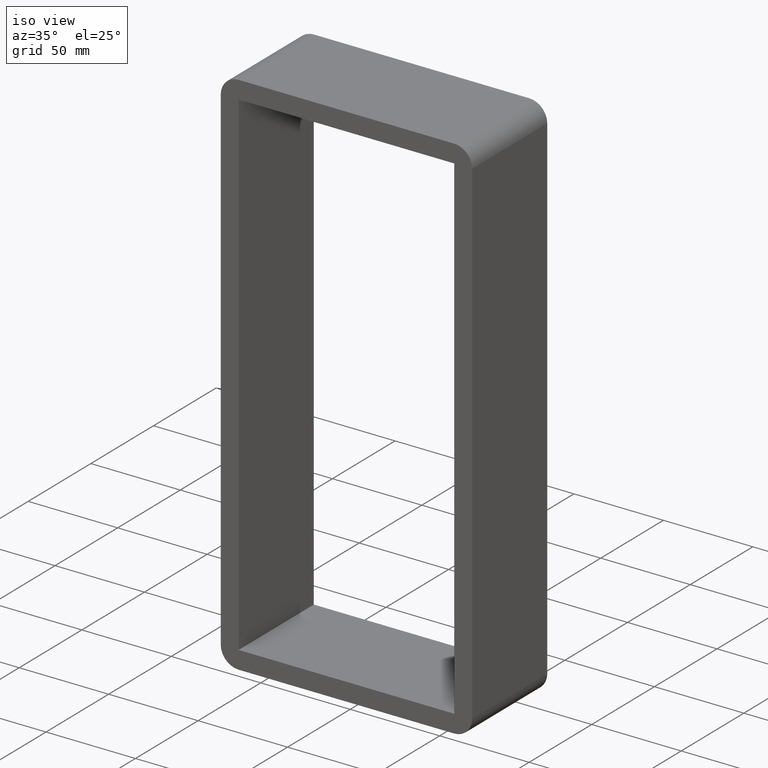
[diagram: clean part render]
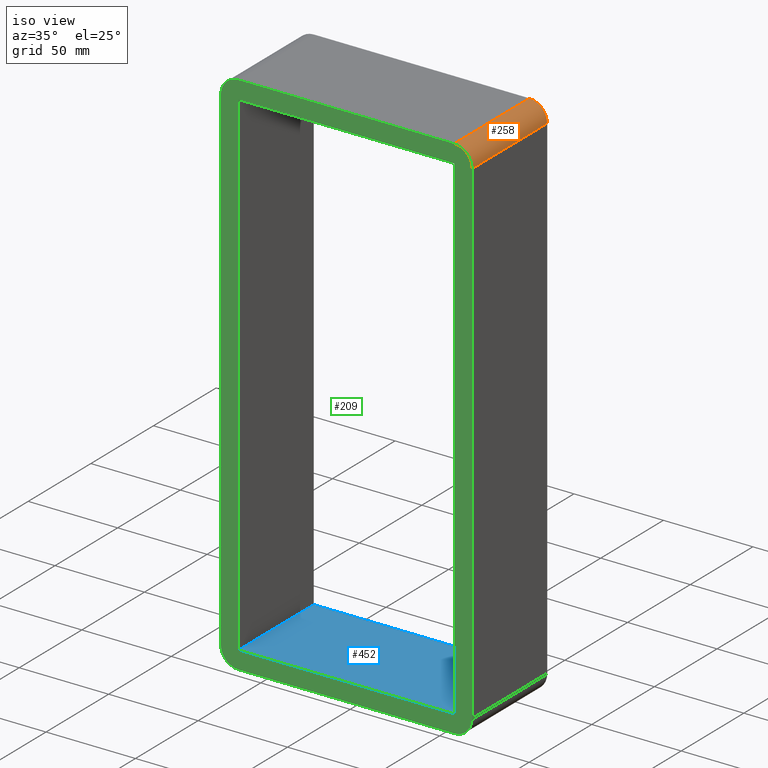
[diagram: same view with three faces highlighted in distinct colors, each labeled with its STEP entity id]
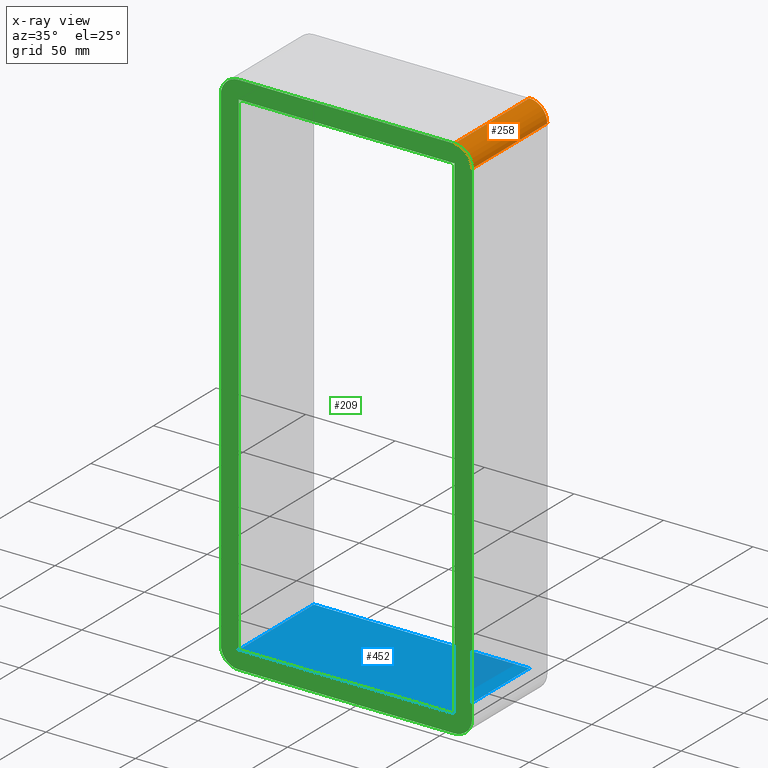
[diagram: x-ray of the same camera — body ghosted, the three highlighted faces saturated]
A machine part, iso view with three faces highlighted in distinct colors.
The next image is the same camera in x-ray (body ghosted, the three faces saturated) — at least one of them is partly hidden behind the body in this view.
Their STEP definitions:

[orange] entity #258 — the highlighted cylindrical surface (edge-blend (fillet) strip) has radius 10 mm, axis along (0, -1, 0).
#116=CARTESIAN_POINT('',(70.25,-3.0,139.0));
#117=VERTEX_POINT('',#116);
#124=CARTESIAN_POINT('',(60.25,-3.0,149.0));
#125=VERTEX_POINT('',#124);
#126=CARTESIAN_POINT('',(60.25,-3.0,139.0));
#127=DIRECTION('',(0.0,1.0,0.0));
#128=DIRECTION('',(0.707106781186547,0.0,0.707106781186547));
#129=AXIS2_PLACEMENT_3D('',#126,#127,#128);
#130=CIRCLE('',#129,9.999999999999998);
#131=EDGE_CURVE('',#125,#117,#130,.T.);
#216=CARTESIAN_POINT('',(70.25,57.0,139.0));
#217=VERTEX_POINT('',#216);
#224=CARTESIAN_POINT('',(70.25,-3.0,139.0));
#225=DIRECTION('',(0.0,1.0,0.0));
#226=VECTOR('',#225,60.0);
#227=LINE('',#224,#226);
#228=EDGE_CURVE('',#117,#217,#227,.T.);
#234=CARTESIAN_POINT('',(60.25,0.0,139.0));
#235=DIRECTION('',(0.0,-1.0,0.0));
#236=DIRECTION('',(0.707106781186547,0.0,0.707106781186547));
#237=AXIS2_PLACEMENT_3D('',#234,#235,#236);
#238=CYLINDRICAL_SURFACE('',#237,10.0);
#239=ORIENTED_EDGE('',*,*,#131,.T.);
#240=ORIENTED_EDGE('',*,*,#228,.T.);
#241=CARTESIAN_POINT('',(60.25,57.0,149.0));
#242=VERTEX_POINT('',#241);
#243=CARTESIAN_POINT('',(60.25,57.0,139.0));
#244=DIRECTION('',(0.0,-1.0,0.0));
#245=DIRECTION('',(0.707106781186547,0.0,0.707106781186547));
#246=AXIS2_PLACEMENT_3D('',#243,#244,#245);
#247=CIRCLE('',#246,9.999999999999998);
#248=EDGE_CURVE('',#217,#242,#247,.T.);
#249=ORIENTED_EDGE('',*,*,#248,.T.);
#250=CARTESIAN_POINT('',(60.25,57.0,149.0));
#251=DIRECTION('',(0.0,-1.0,0.0));
#252=VECTOR('',#251,60.0);
#253=LINE('',#250,#252);
#254=EDGE_CURVE('',#242,#125,#253,.T.);
#255=ORIENTED_EDGE('',*,*,#254,.T.);
#256=EDGE_LOOP('',(#239,#240,#249,#255));
#257=FACE_OUTER_BOUND('',#256,.T.);
#258=ADVANCED_FACE('',(#257),#238,.T.);

[blue] entity #452 — the highlighted planar face has unit normal (0, 0, -1).
#177=CARTESIAN_POINT('',(60.25,-3.0,-139.0));
#178=VERTEX_POINT('',#177);
#185=CARTESIAN_POINT('',(-60.25,-3.0,-139.0));
#186=VERTEX_POINT('',#185);
#187=CARTESIAN_POINT('',(60.25,-3.0,-139.0));
#188=DIRECTION('',(-1.0,0.0,0.0));
#189=VECTOR('',#188,120.50000000000001);
#190=LINE('',#187,#189);
#191=EDGE_CURVE('',#178,#186,#190,.T.);
#362=CARTESIAN_POINT('',(60.25,57.0,-139.0));
#363=VERTEX_POINT('',#362);
#364=CARTESIAN_POINT('',(60.25,57.0,-139.0));
#365=DIRECTION('',(0.0,-1.0,0.0));
#366=VECTOR('',#365,60.0);
#367=LINE('',#364,#366);
#368=EDGE_CURVE('',#363,#178,#367,.T.);
#419=CARTESIAN_POINT('',(-60.25,57.0,-139.0));
#420=VERTEX_POINT('',#419);
#421=CARTESIAN_POINT('',(-60.25,-3.0,-139.0));
#422=DIRECTION('',(0.0,1.0,0.0));
#423=VECTOR('',#422,60.0);
#424=LINE('',#421,#423);
#425=EDGE_CURVE('',#186,#420,#424,.T.);
#436=CARTESIAN_POINT('',(60.25,0.0,-139.0));
#437=DIRECTION('',(0.0,0.0,-1.0));
#438=DIRECTION('',(-1.0,0.0,0.0));
#439=AXIS2_PLACEMENT_3D('',#436,#437,#438);
#440=PLANE('',#439);
#441=ORIENTED_EDGE('',*,*,#425,.F.);
#442=ORIENTED_EDGE('',*,*,#191,.F.);
#443=ORIENTED_EDGE('',*,*,#368,.F.);
#444=CARTESIAN_POINT('',(-60.250000000000014,57.0,-139.0));
#445=DIRECTION('',(1.0,0.0,0.0));
#446=VECTOR('',#445,120.50000000000001);
#447=LINE('',#444,#446);
#448=EDGE_CURVE('',#420,#363,#447,.T.);
#449=ORIENTED_EDGE('',*,*,#448,.F.);
#450=EDGE_LOOP('',(#441,#442,#443,#449));
#451=FACE_OUTER_BOUND('',#450,.T.);
#452=ADVANCED_FACE('',(#451),#440,.F.);

[green] entity #209 — the highlighted planar face has unit normal (0, 1, 0).
#84=CARTESIAN_POINT('',(70.25,-3.0,-139.00000000000003));
#85=VERTEX_POINT('',#84);
#92=CARTESIAN_POINT('',(60.25,-3.0,-149.00000000000003));
#93=VERTEX_POINT('',#92);
#94=CARTESIAN_POINT('',(60.25,-3.0,-139.00000000000003));
#95=DIRECTION('',(0.0,1.0,0.0));
#96=DIRECTION('',(0.707106781186547,0.0,-0.707106781186547));
#97=AXIS2_PLACEMENT_3D('',#94,#95,#96);
#98=CIRCLE('',#97,9.999999999999998);
#99=EDGE_CURVE('',#85,#93,#98,.T.);
#110=CARTESIAN_POINT('',(0.0,-3.0,-1.458355E-014));
#111=DIRECTION('',(0.0,1.0,0.0));
#112=DIRECTION('',(0.0,0.0,1.0));
#113=AXIS2_PLACEMENT_3D('',#110,#111,#112);
#114=PLANE('',#113);
#115=ORIENTED_EDGE('',*,*,#99,.F.);
#116=CARTESIAN_POINT('',(70.25,-3.0,139.0));
#117=VERTEX_POINT('',#116);
#118=CARTESIAN_POINT('',(70.25,-3.0,-139.0));
#119=DIRECTION('',(0.0,0.0,1.0));
#120=VECTOR('',#119,278.0);
#121=LINE('',#118,#120);
#122=EDGE_CURVE('',#85,#117,#121,.T.);
#123=ORIENTED_EDGE('',*,*,#122,.T.);
#124=CARTESIAN_POINT('',(60.25,-3.0,149.0));
#125=VERTEX_POINT('',#124);
#126=CARTESIAN_POINT('',(60.25,-3.0,139.0));
#127=DIRECTION('',(0.0,1.0,0.0));
#128=DIRECTION('',(0.707106781186547,0.0,0.707106781186547));
#129=AXIS2_PLACEMENT_3D('',#126,#127,#128);
#130=CIRCLE('',#129,9.999999999999998);
#131=EDGE_CURVE('',#125,#117,#130,.T.);
#132=ORIENTED_EDGE('',*,*,#131,.F.);
#133=CARTESIAN_POINT('',(-60.25,-3.0,149.0));
#134=VERTEX_POINT('',#133);
#135=CARTESIAN_POINT('',(60.25,-3.0,149.0));
#136=DIRECTION('',(-1.0,0.0,0.0));
#137=VECTOR('',#136,120.5);
#138=LINE('',#135,#137);
#139=EDGE_CURVE('',#125,#134,#138,.T.);
#140=ORIENTED_EDGE('',*,*,#139,.T.);
#141=CARTESIAN_POINT('',(-70.25,-3.0,139.0));
#142=VERTEX_POINT('',#141);
#143=CARTESIAN_POINT('',(-60.25,-3.0,139.0));
#144=DIRECTION('',(0.0,1.0,0.0));
#145=DIRECTION('',(-0.707106781186547,0.0,0.707106781186547));
#146=AXIS2_PLACEMENT_3D('',#143,#144,#145);
#147=CIRCLE('',#146,9.999999999999998);
#148=EDGE_CURVE('',#142,#134,#147,.T.);
#149=ORIENTED_EDGE('',*,*,#148,.F.);
#150=CARTESIAN_POINT('',(-70.25,-3.0,-139.00000000000003));
#151=VERTEX_POINT('',#150);
#152=CARTESIAN_POINT('',(-70.25,-3.0,138.99999999999997));
#153=DIRECTION('',(0.0,0.0,-1.0));
#154=VECTOR('',#153,278.0);
#155=LINE('',#152,#154);
#156=EDGE_CURVE('',#142,#151,#155,.T.);
#157=ORIENTED_EDGE('',*,*,#156,.T.);
#158=CARTESIAN_POINT('',(-60.25,-3.0,-149.00000000000003));
#159=VERTEX_POINT('',#158);
#160=CARTESIAN_POINT('',(-60.25,-3.0,-139.00000000000003));
#161=DIRECTION('',(0.0,1.0,0.0));
#162=DIRECTION('',(-0.707106781186547,0.0,-0.707106781186547));
#163=AXIS2_PLACEMENT_3D('',#160,#161,#162);
#164=CIRCLE('',#163,9.999999999999998);
#165=EDGE_CURVE('',#159,#151,#164,.T.);
#166=ORIENTED_EDGE('',*,*,#165,.F.);
#167=CARTESIAN_POINT('',(-60.25,-3.0,-149.00000000000003));
#168=DIRECTION('',(1.0,0.0,0.0));
#169=VECTOR('',#168,120.5);
#170=LINE('',#167,#169);
#171=EDGE_CURVE('',#159,#93,#170,.T.);
#172=ORIENTED_EDGE('',*,*,#171,.T.);
#173=EDGE_LOOP('',(#115,#123,#132,#140,#149,#157,#166,#172));
#174=FACE_OUTER_BOUND('',#173,.T.);
#175=CARTESIAN_POINT('',(60.25,-3.0,138.99999999999997));
#176=VERTEX_POINT('',#175);
#177=CARTESIAN_POINT('',(60.25,-3.0,-139.0));
#178=VERTEX_POINT('',#177);
#179=CARTESIAN_POINT('',(60.25,-3.0,138.99999999999997));
#180=DIRECTION('',(0.0,0.0,-1.0));
#181=VECTOR('',#180,278.0);
#182=LINE('',#179,#181);
#183=EDGE_CURVE('',#176,#178,#182,.T.);
#184=ORIENTED_EDGE('',*,*,#183,.T.);
#185=CARTESIAN_POINT('',(-60.25,-3.0,-139.0));
#186=VERTEX_POINT('',#185);
#187=CARTESIAN_POINT('',(60.25,-3.0,-139.0));
#188=DIRECTION('',(-1.0,0.0,0.0));
#189=VECTOR('',#188,120.50000000000001);
#190=LINE('',#187,#189);
#191=EDGE_CURVE('',#178,#186,#190,.T.);
#192=ORIENTED_EDGE('',*,*,#191,.T.);
#193=CARTESIAN_POINT('',(-60.25,-3.0,138.99999999999997));
#194=VERTEX_POINT('',#193);
#195=CARTESIAN_POINT('',(-60.25,-3.0,-139.0));
#196=DIRECTION('',(0.0,0.0,1.0));
#197=VECTOR('',#196,277.99999999999994);
#198=LINE('',#195,#197);
#199=EDGE_CURVE('',#186,#194,#198,.T.);
#200=ORIENTED_EDGE('',*,*,#199,.T.);
#201=CARTESIAN_POINT('',(-60.25,-3.0,139.0));
#202=DIRECTION('',(1.0,0.0,0.0));
#203=VECTOR('',#202,120.50000000000001);
#204=LINE('',#201,#203);
#205=EDGE_CURVE('',#194,#176,#204,.T.);
#206=ORIENTED_EDGE('',*,*,#205,.T.);
#207=EDGE_LOOP('',(#184,#192,#200,#206));
#208=FACE_BOUND('',#207,.T.);
#209=ADVANCED_FACE('',(#174,#208),#114,.F.);